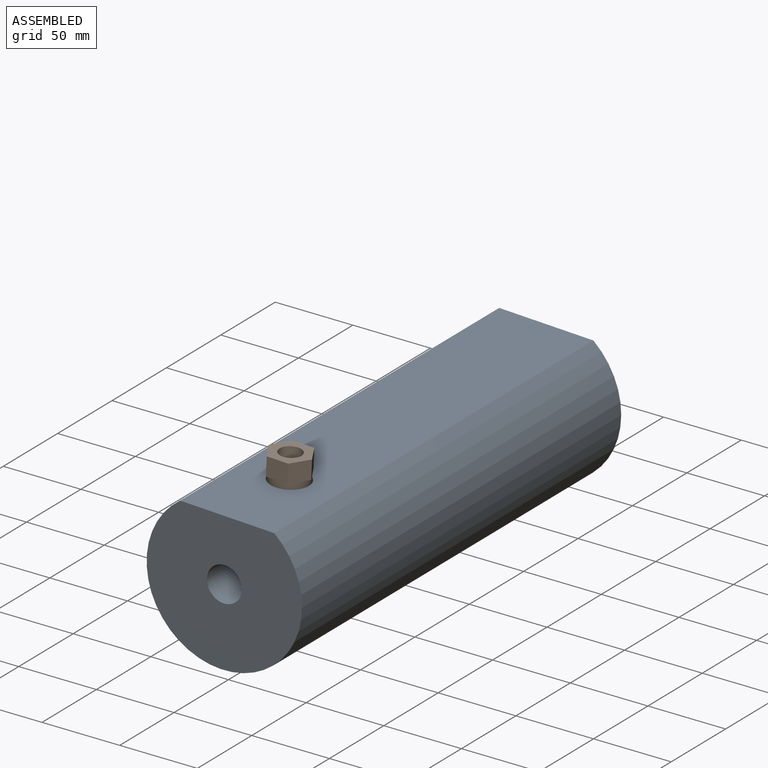
[diagram: assembled view]
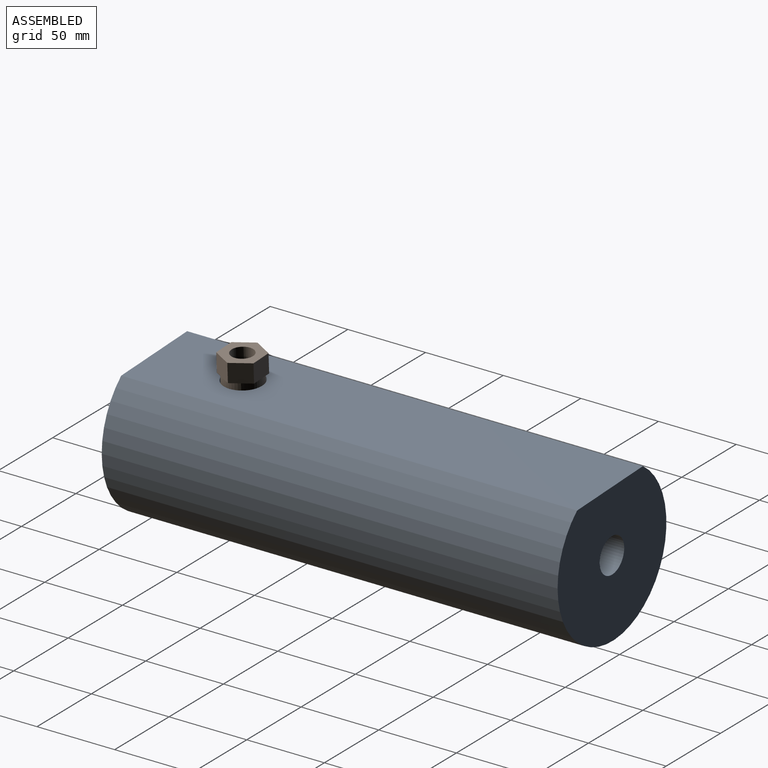
[diagram: assembled view, second angle]
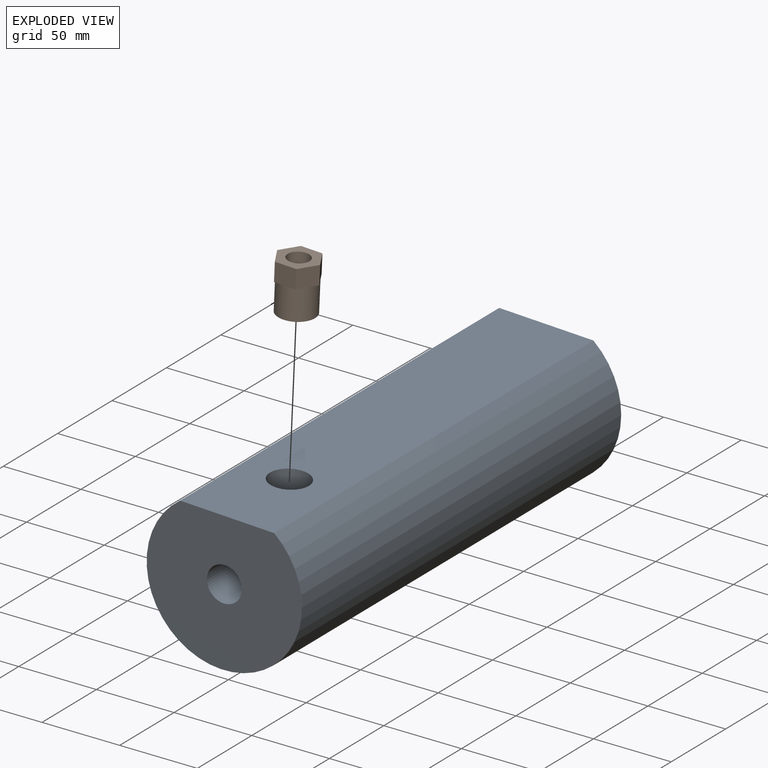
[diagram: exploded view]
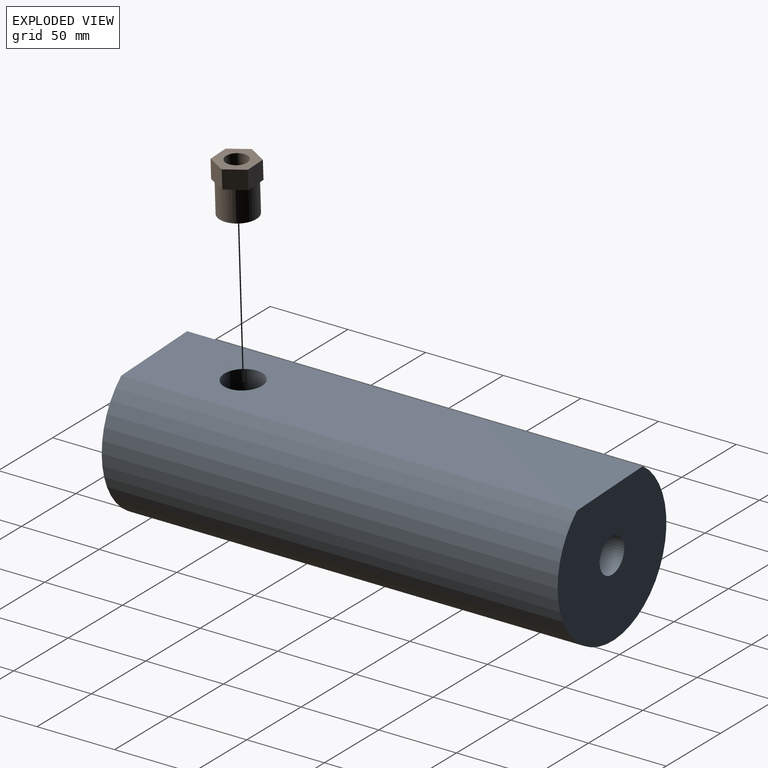
[diagram: exploded view, second angle]
ASSEMBLY  parts=2 mates=2
PART A: 8 faces, bbox 100x293.5x89.8 mm
  f0: cylinder r=11.25mm len=293.47mm, axis (0,-1,0), area 20510.6mm2, adj f3,f4,f5
  f1: plane 293.47x60.66mm, normal (0,0,1), area 17311mm2, adj f2,f3,f4,f6
  f2: cylinder r=50mm len=293.47mm, axis (0,-1,0), area 73067.3mm2, adj f1,f3,f4
  f3: plane 100x89.75mm, normal (0,1,0), area 7032.5mm2, adj f0,f1,f2
  f4: plane 100x89.75mm, normal (0,-1,0), area 7032.5mm2, adj f0,f1,f2
  f5: cone r=7mm half-angle=5deg, axis (0,0,-1), area 686.2mm2, adj f0,f7
  f6: cylinder r=12.5mm len=25mm, axis (0,0,-1), area 1256.6mm2, adj f1,f7
  f7: plane 25x25mm, normal (0,0,1), area 336.9mm2, adj f5,f6
PART B: 16 faces, bbox 27.7x32x24 mm
  f0: plane 10.39x6mm, normal (0,-1,0), area 7.7mm2, adj f6,f7,f13
  f1: plane 12x3.46mm, normal (0,-1,0), area 7.7mm2, adj f7,f8,f13
  f2: plane 10.39x6mm, normal (0,-1,0), area 7.7mm2, adj f8,f9,f13
  f3: plane 10.39x6mm, normal (0,-1,0), area 7.7mm2, adj f9,f10,f13
  f4: plane 12x3.46mm, normal (0,-1,0), area 7.7mm2, adj f5,f10,f13
  f5: plane 12x12mm, normal (-0.87,0,-0.5), area 166.3mm2, adj f4,f6,f10,f11,f12
  f6: plane 13.86x12mm, normal (0,0,-1), area 166.3mm2, adj f0,f5,f7,f11,f12
  f7: plane 12x12mm, normal (0.87,0,-0.5), area 166.3mm2, adj f0,f1,f6,f8,f12
  f8: plane 12x12mm, normal (0.87,0,0.5), area 166.3mm2, adj f1,f2,f7,f9,f12
  f9: plane 13.86x12mm, normal (0,0,1), area 166.3mm2, adj f2,f3,f8,f10,f12
  f10: plane 12x12mm, normal (-0.87,0,0.5), area 166.3mm2, adj f3,f4,f5,f9,f12
  f11: plane 10.39x6mm, normal (0,-1,0), area 7.7mm2, adj f5,f6,f13
  f12: plane 27.71x24mm, normal (0,1,0), area 344.9mm2, adj f5,f6,f7,f8,f9,f10,f15
  f13: cylinder r=12mm len=24mm, axis (0,1,0), area 1508mm2, adj f0,f1,f2,f3,f4,f11,f14
  f14: plane 24x24mm, normal (0,-1,0), area 298.5mm2, adj f13,f15
  f15: cylinder r=7mm len=32mm, axis (0,1,0), area 1407.4mm2, adj f12,f14
PLACE A rot(axis=(0,1,0),2.6deg) t=(-2.56,-0.13,0.08)mm
PLACE B rot(axis=(1,0.02,-0.02),90deg) t=(-0.03,57.17,55.77)mm
MATE planar B.f13 <-> A.f5  axis (-0.05,0,-1) through (-1.48,57.17,23.8)mm
MATE cylindrical B.f13 <-> A.f5  axis (-0.05,0,-1) through (-1.48,57.17,23.8)mm
